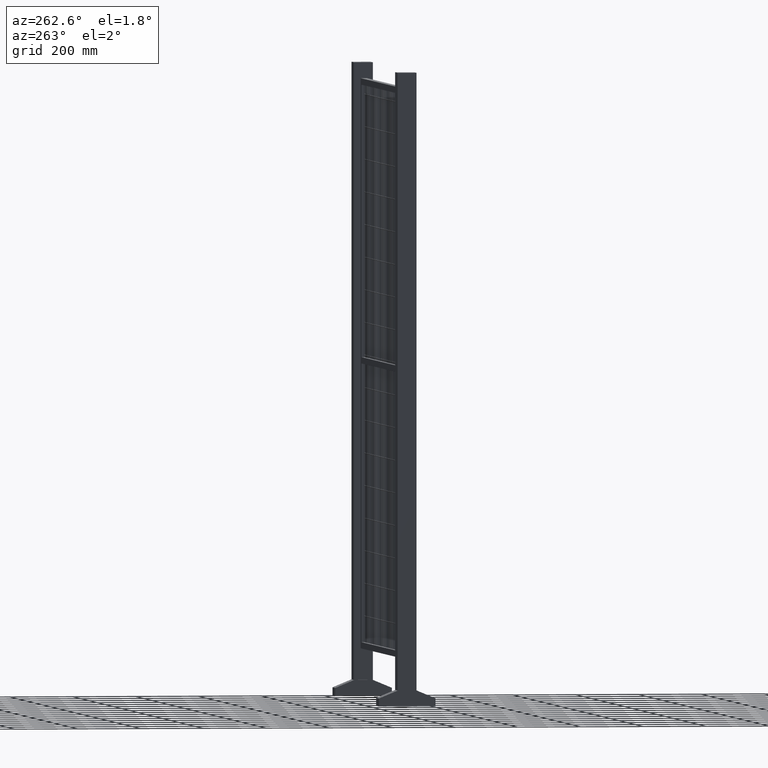
[diagram: clean part render]
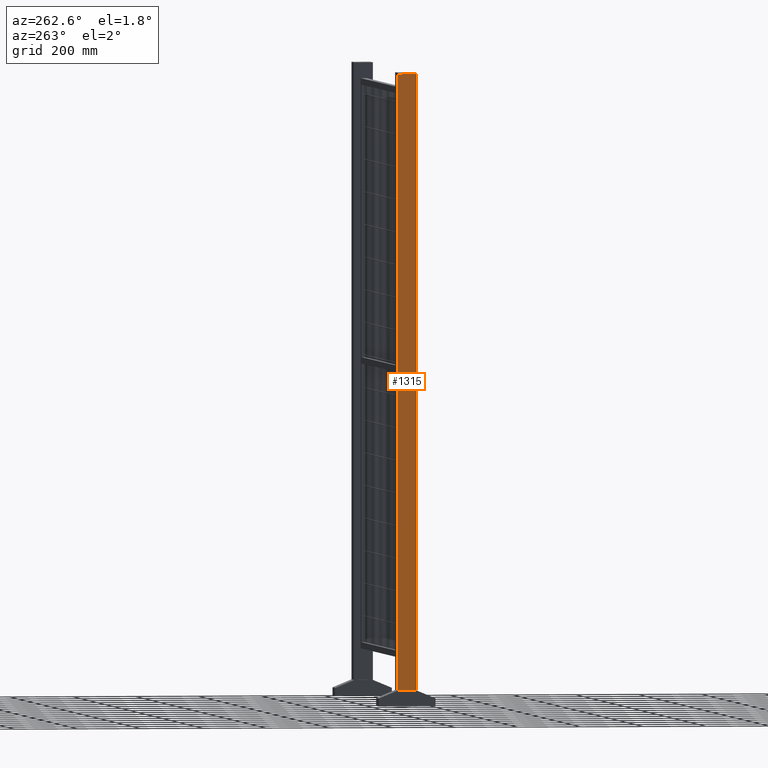
[diagram: same view with one face highlighted and labeled with its STEP entity id]
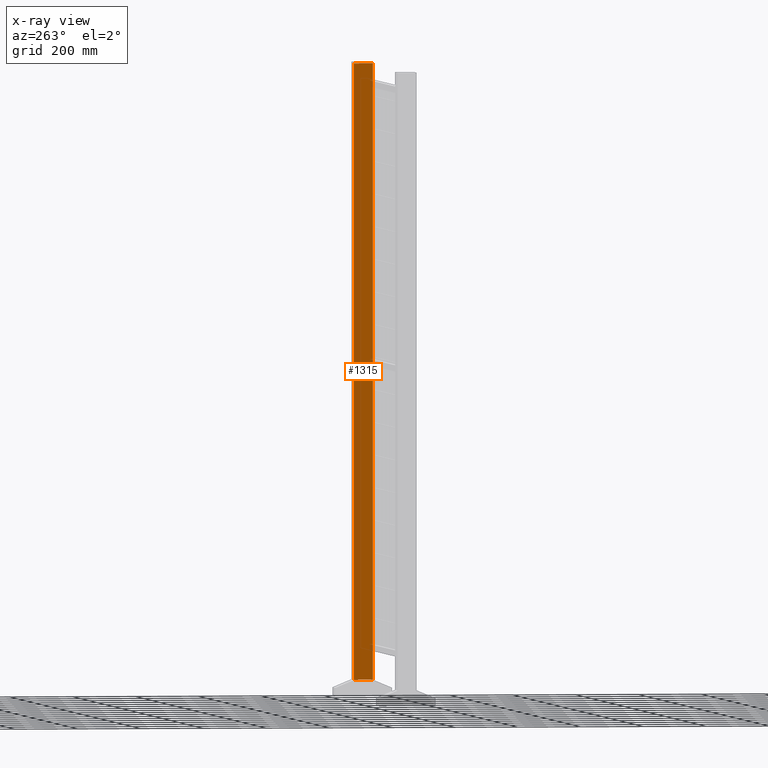
[diagram: x-ray of the same camera — body ghosted, the highlighted face saturated]
A machine part, auxiliary view. The second image highlights one B-rep face of the part: STEP entity #1315.
The next image is the same camera in x-ray: the body ghosted, the highlighted face saturated — about 1% of this face is hidden behind the body in this view.
In plain terms, the highlighted planar face has unit normal (1, 0, 0).
Its self-contained STEP definition (entity closure, byte-faithful):
#130=LINE('',#4557,#224);
#133=LINE('',#4563,#227);
#136=LINE('',#4569,#230);
#139=LINE('',#4574,#233);
#224=VECTOR('',#3918,1.);
#227=VECTOR('',#3923,1.);
#230=VECTOR('',#3928,1.);
#233=VECTOR('',#3933,1.);
#945=PLANE('',#3159);
#1096=FACE_OUTER_BOUND('',#1817,.T.);
#1315=ADVANCED_FACE('',(#1096),#945,.F.);
#1817=EDGE_LOOP('',(#2241,#2242,#2243,#2244));
#2241=ORIENTED_EDGE('',*,*,#2665,.F.);
#2242=ORIENTED_EDGE('',*,*,#2674,.F.);
#2243=ORIENTED_EDGE('',*,*,#2671,.F.);
#2244=ORIENTED_EDGE('',*,*,#2668,.F.);
#2449=VERTEX_POINT('',#4556);
#2450=VERTEX_POINT('',#4558);
#2452=VERTEX_POINT('',#4564);
#2454=VERTEX_POINT('',#4570);
#2665=EDGE_CURVE('',#2449,#2450,#130,.T.);
#2668=EDGE_CURVE('',#2450,#2452,#133,.T.);
#2671=EDGE_CURVE('',#2452,#2454,#136,.T.);
#2674=EDGE_CURVE('',#2454,#2449,#139,.T.);
#3159=AXIS2_PLACEMENT_3D('',#4576,#3936,#3937);
#3918=DIRECTION('',(0.,0.,-1.));
#3923=DIRECTION('',(-1.,0.,0.));
#3928=DIRECTION('',(1.78286071528963E-18,0.,1.));
#3933=DIRECTION('',(1.,0.,0.));
#3936=DIRECTION('',(0.,1.,0.));
#3937=DIRECTION('',(0.,0.,1.));
#4556=CARTESIAN_POINT('',(30.,-30.,1996.));
#4557=CARTESIAN_POINT('',(30.,-30.,1996.));
#4558=CARTESIAN_POINT('',(30.,-30.,50.));
#4563=CARTESIAN_POINT('',(30.,-30.,50.));
#4564=CARTESIAN_POINT('',(-30.,-30.,50.));
#4569=CARTESIAN_POINT('',(-30.,-30.,50.));
#4570=CARTESIAN_POINT('',(-30.,-30.,1996.));
#4574=CARTESIAN_POINT('',(-30.,-30.,1996.));
#4576=CARTESIAN_POINT('',(0.,-30.,0.));